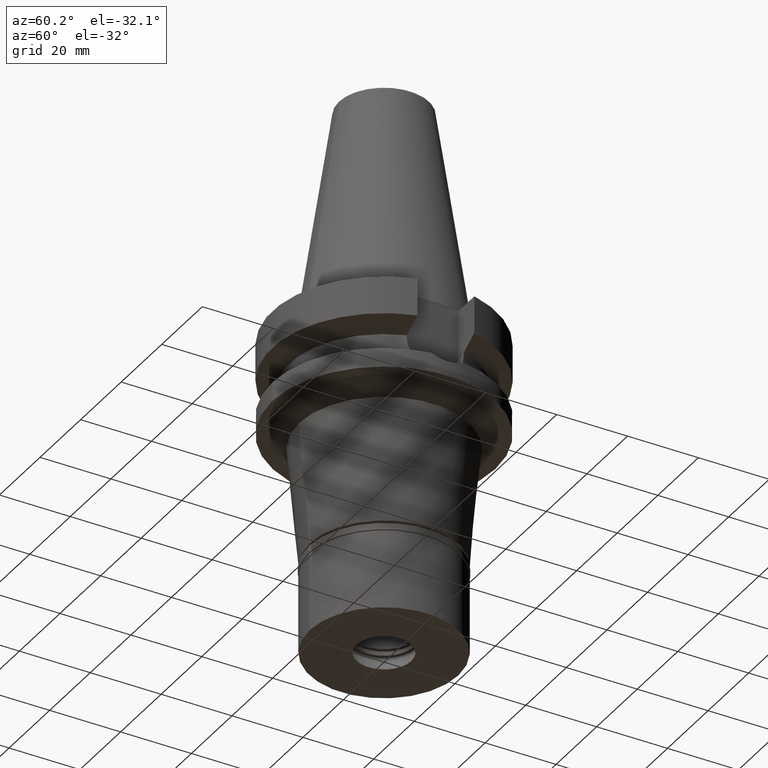
[diagram: clean part render]
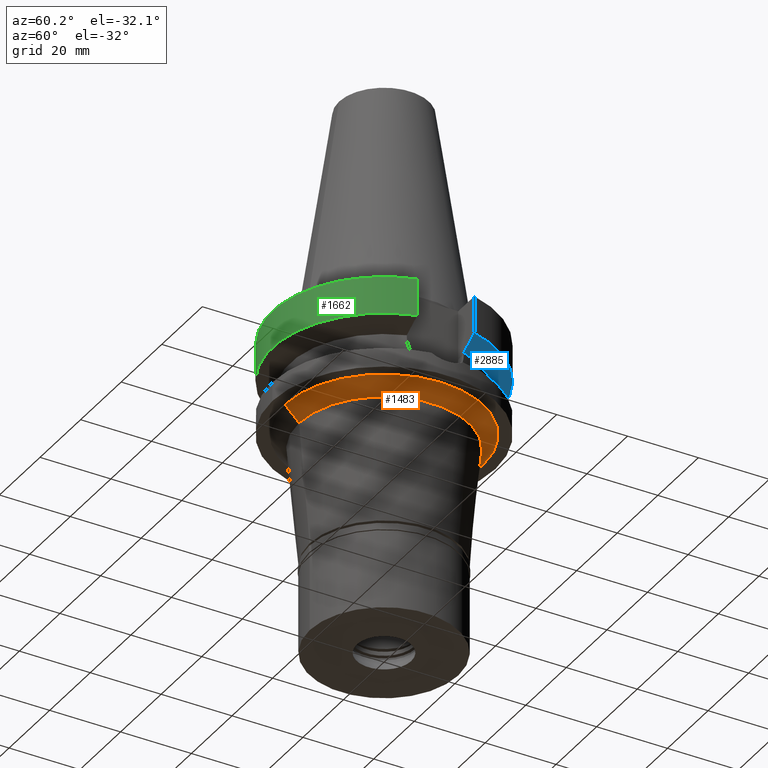
[diagram: same view with three faces highlighted in distinct colors, each labeled with its STEP entity id]
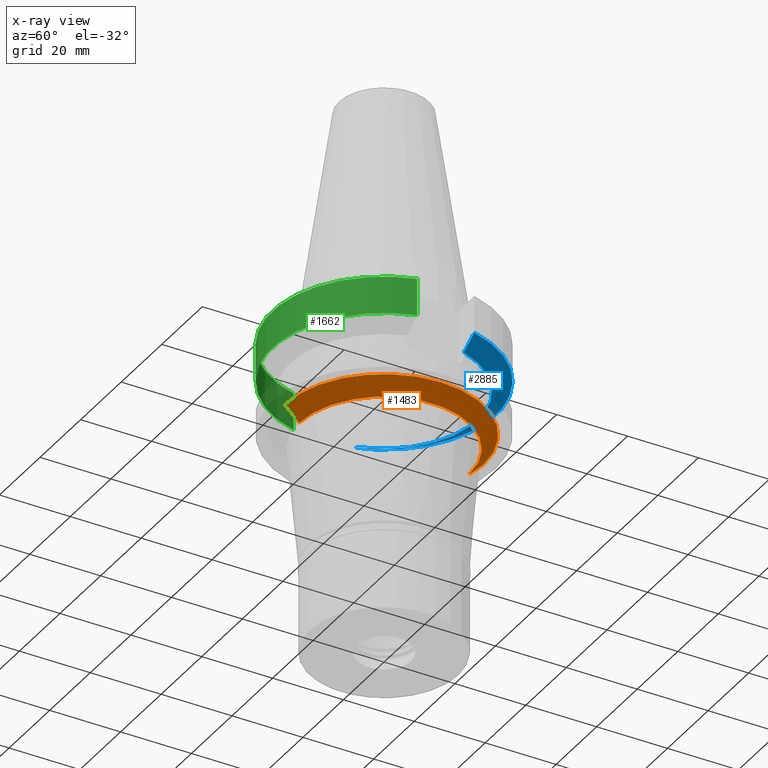
[diagram: x-ray of the same camera — body ghosted, the three highlighted faces saturated]
A machine part, auxiliary view with three faces highlighted in distinct colors.
The next image is the same camera in x-ray (body ghosted, the three faces saturated) — at least one of them is partly hidden behind the body in this view.
Their STEP definitions:

[orange] entity #1483 — the highlighted conical surface has half-angle 45 deg.
#14 = CIRCLE ( 'NONE', #430, 27.96586569352999874 ) ;
#31 = CONICAL_SURFACE ( 'NONE', #802, 25.96586569352999874, 0.7853981633972997312 ) ;
#82 = DIRECTION ( 'NONE',  ( 0.0000000000000000000, 0.7071067811867974839, -0.7071067811862974395 ) ) ;
#284 = CARTESIAN_POINT ( 'NONE',  ( 0.0000000000000000000, -27.96586569352999874, -27.00000000000000000 ) ) ;
#323 = ORIENTED_EDGE ( 'NONE', *, *, #1820, .T. ) ;
#324 = FACE_OUTER_BOUND ( 'NONE', #2244, .T. ) ;
#343 = DIRECTION ( 'NONE',  ( 0.0000000000000000000, 0.0000000000000000000, 1.000000000000000000 ) ) ;
#389 = CIRCLE ( 'NONE', #704, 23.96586569352000140 ) ;
#430 = AXIS2_PLACEMENT_3D ( 'NONE', #2709, #818, #2453 ) ;
#680 = CARTESIAN_POINT ( 'NONE',  ( 0.0000000000000000000, 27.96586569352999874, -27.00000000000000000 ) ) ;
#704 = AXIS2_PLACEMENT_3D ( 'NONE', #2747, #343, #2509 ) ;
#802 = AXIS2_PLACEMENT_3D ( 'NONE', #1537, #2565, #1602 ) ;
#818 = DIRECTION ( 'NONE',  ( 0.0000000000000000000, 0.0000000000000000000, -1.000000000000000000 ) ) ;
#895 = ORIENTED_EDGE ( 'NONE', *, *, #1582, .T. ) ;
#965 = DIRECTION ( 'NONE',  ( 0.0000000000000000000, -0.7071067811867974839, -0.7071067811862974395 ) ) ;
#1163 = VECTOR ( 'NONE', #82, 1000.000000000000114 ) ;
#1287 = CARTESIAN_POINT ( 'NONE',  ( 0.0000000000000000000, 23.96586569352999874, -31.00000000000000000 ) ) ;
#1468 = LINE ( 'NONE', #284, #1163 ) ;
#1483 = ADVANCED_FACE ( 'NONE', ( #324 ), #31, .T. ) ;
#1507 = ORIENTED_EDGE ( 'NONE', *, *, #2414, .T. ) ;
#1537 = CARTESIAN_POINT ( 'NONE',  ( 0.0000000000000000000, 0.0000000000000000000, -29.00000000000000000 ) ) ;
#1582 = EDGE_CURVE ( 'NONE', #1742, #2393, #389, .T. ) ;
#1602 = DIRECTION ( 'NONE',  ( 0.0000000000000000000, 1.000000000000000000, 0.0000000000000000000 ) ) ;
#1742 = VERTEX_POINT ( 'NONE', #3114 ) ;
#1820 = EDGE_CURVE ( 'NONE', #1930, #1742, #1468, .T. ) ;
#1883 = LINE ( 'NONE', #680, #2426 ) ;
#1930 = VERTEX_POINT ( 'NONE', #2475 ) ;
#2164 = ORIENTED_EDGE ( 'NONE', *, *, #2316, .F. ) ;
#2244 = EDGE_LOOP ( 'NONE', ( #1507, #323, #895, #2164 ) ) ;
#2316 = EDGE_CURVE ( 'NONE', #3151, #2393, #1883, .T. ) ;
#2393 = VERTEX_POINT ( 'NONE', #1287 ) ;
#2398 = CARTESIAN_POINT ( 'NONE',  ( 0.0000000000000000000, 27.96586569352999874, -27.00000000000000000 ) ) ;
#2414 = EDGE_CURVE ( 'NONE', #3151, #1930, #14, .T. ) ;
#2426 = VECTOR ( 'NONE', #965, 1000.000000000000114 ) ;
#2453 = DIRECTION ( 'NONE',  ( 0.0000000000000000000, 1.000000000000000000, 0.0000000000000000000 ) ) ;
#2475 = CARTESIAN_POINT ( 'NONE',  ( 0.0000000000000000000, -27.96586569352999874, -27.00000000000000000 ) ) ;
#2509 = DIRECTION ( 'NONE',  ( 0.0000000000000000000, -1.000000000000000000, 0.0000000000000000000 ) ) ;
#2565 = DIRECTION ( 'NONE',  ( 0.0000000000000000000, 0.0000000000000000000, 1.000000000000000000 ) ) ;
#2709 = CARTESIAN_POINT ( 'NONE',  ( 0.0000000000000000000, 0.0000000000000000000, -27.00000000000000000 ) ) ;
#2747 = CARTESIAN_POINT ( 'NONE',  ( 0.0000000000000000000, 0.0000000000000000000, -31.00000000000000000 ) ) ;
#3114 = CARTESIAN_POINT ( 'NONE',  ( 0.0000000000000000000, -23.96586569352999874, -31.00000000000000000 ) ) ;
#3151 = VERTEX_POINT ( 'NONE', #2398 ) ;

[blue] entity #2885 — the highlighted conical surface has half-angle 60 deg.
#92 = B_SPLINE_CURVE_WITH_KNOTS ( 'NONE', 3,
 ( #1605, #868, #1513, #138 ),
 .UNSPECIFIED., .F., .F.,
 ( 4, 4 ),
 ( 0.0000000000000000000, 1.000000000000000000 ),
 .UNSPECIFIED. ) ;
#117 = CIRCLE ( 'NONE', #2047, 31.50000000000000000 ) ;
#138 = CARTESIAN_POINT ( 'NONE',  ( -30.45402162689999770, 8.050004145840000902, -11.56546830870999898 ) ) ;
#247 = EDGE_CURVE ( 'NONE', #1014, #1647, #117, .T. ) ;
#259 = CARTESIAN_POINT ( 'NONE',  ( -25.24772216456000251, 8.050001583911001291, -14.45224489613999985 ) ) ;
#425 = CARTESIAN_POINT ( 'NONE',  ( -30.45402162689999770, 8.050004145840000902, -11.56546830870999898 ) ) ;
#498 = EDGE_CURVE ( 'NONE', #1345, #1647, #92, .T. ) ;
#504 = DIRECTION ( 'NONE',  ( -0.9527442516822307583, 0.3037735849057093818, 0.0000000000000000000 ) ) ;
#585 = AXIS2_PLACEMENT_3D ( 'NONE', #2920, #1051, #2707 ) ;
#728 = ORIENTED_EDGE ( 'NONE', *, *, #1817, .F. ) ;
#755 = FACE_OUTER_BOUND ( 'NONE', #1126, .T. ) ;
#830 = B_SPLINE_CURVE_WITH_KNOTS ( 'NONE', 3,
 ( #1782, #1033, #2005, #1311 ),
 .UNSPECIFIED., .F., .F.,
 ( 4, 4 ),
 ( 0.0000000000000000000, 1.000000000000000000 ),
 .UNSPECIFIED. ) ;
#868 = CARTESIAN_POINT ( 'NONE',  ( -26.83758141526010732, 8.050003171244510369, -13.57772739050068900 ) ) ;
#911 = VERTEX_POINT ( 'NONE', #2498 ) ;
#1014 = VERTEX_POINT ( 'NONE', #2097 ) ;
#1033 = CARTESIAN_POINT ( 'NONE',  ( 28.57292325961556401, 8.049998553931823508, -12.61549607296751141 ) ) ;
#1051 = DIRECTION ( 'NONE',  ( 0.0000000000000000000, 0.0000000000000000000, 1.000000000000000000 ) ) ;
#1076 = DIRECTION ( 'NONE',  ( 0.0000000000000000000, 0.0000000000000000000, 1.000000000000000000 ) ) ;
#1126 = EDGE_LOOP ( 'NONE', ( #1549, #1832, #728, #2587 ) ) ;
#1278 = DIRECTION ( 'NONE',  ( 0.0000000000000000000, 1.000000000000000000, 0.0000000000000000000 ) ) ;
#1311 = CARTESIAN_POINT ( 'NONE',  ( 25.24772413222000012, 8.049995412611998802, -14.45229205223999891 ) ) ;
#1345 = VERTEX_POINT ( 'NONE', #259 ) ;
#1411 = CIRCLE ( 'NONE', #2782, 26.50000000000000711 ) ;
#1513 = CARTESIAN_POINT ( 'NONE',  ( -28.57295865002469881, 8.050008286641141098, -12.61547483839417971 ) ) ;
#1547 = CONICAL_SURFACE ( 'NONE', #585, 29.00000000000000000, 1.047197551196400456 ) ;
#1549 = ORIENTED_EDGE ( 'NONE', *, *, #247, .F. ) ;
#1605 = CARTESIAN_POINT ( 'NONE',  ( -25.24772216456000251, 8.050001583911001291, -14.45224489613999985 ) ) ;
#1647 = VERTEX_POINT ( 'NONE', #425 ) ;
#1782 = CARTESIAN_POINT ( 'NONE',  ( 30.45402291402999850, 8.049999276495000800, -11.56551216911999980 ) ) ;
#1784 = CARTESIAN_POINT ( 'NONE',  ( 0.0000000000000000000, 1.065333950388000029E-14, -11.56550565266999975 ) ) ;
#1817 = EDGE_CURVE ( 'NONE', #1345, #911, #1411, .T. ) ;
#1832 = ORIENTED_EDGE ( 'NONE', *, *, #2424, .T. ) ;
#2005 = CARTESIAN_POINT ( 'NONE',  ( 26.83754612812102280, 8.049990815062949778, -13.57774889971515186 ) ) ;
#2047 = AXIS2_PLACEMENT_3D ( 'NONE', #1784, #1076, #1278 ) ;
#2097 = CARTESIAN_POINT ( 'NONE',  ( 30.45402291402999850, 8.049999276495000800, -11.56551216911999980 ) ) ;
#2424 = EDGE_CURVE ( 'NONE', #1014, #911, #830, .T. ) ;
#2498 = CARTESIAN_POINT ( 'NONE',  ( 25.24772413222000012, 8.049995412611998802, -14.45229205223999891 ) ) ;
#2587 = ORIENTED_EDGE ( 'NONE', *, *, #498, .T. ) ;
#2687 = DIRECTION ( 'NONE',  ( 0.0000000000000000000, 0.0000000000000000000, -1.000000000000000000 ) ) ;
#2707 = DIRECTION ( 'NONE',  ( 0.0000000000000000000, 1.000000000000000000, 0.0000000000000000000 ) ) ;
#2782 = AXIS2_PLACEMENT_3D ( 'NONE', #2910, #2687, #504 ) ;
#2885 = ADVANCED_FACE ( 'NONE', ( #755 ), #1547, .T. ) ;
#2910 = CARTESIAN_POINT ( 'NONE',  ( 0.0000000000000000000, 1.065333950388000029E-14, -14.45225699861000024 ) ) ;
#2920 = CARTESIAN_POINT ( 'NONE',  ( 0.0000000000000000000, 1.065333950388000029E-14, -13.00888132564000088 ) ) ;

[green] entity #1662 — the highlighted cylindrical surface (partial cylindrical patch) has radius 31.5 mm, axis along (0, 0, -1).
#27 = CIRCLE ( 'NONE', #3086, 31.50000000000000000 ) ;
#90 = DIRECTION ( 'NONE',  ( -1.037635672219017537E-07, -3.925482874443068289E-07, -0.9999999999999176215 ) ) ;
#91 = LINE ( 'NONE', #1336, #1308 ) ;
#118 = CARTESIAN_POINT ( 'NONE',  ( 30.45402272279000044, -8.050000000000000711, -1.000000000000000000 ) ) ;
#225 = ORIENTED_EDGE ( 'NONE', *, *, #2401, .T. ) ;
#295 = CARTESIAN_POINT ( 'NONE',  ( 0.0000000000000000000, 1.065333950388000029E-14, -11.56550565266999975 ) ) ;
#401 = VERTEX_POINT ( 'NONE', #2224 ) ;
#555 = DIRECTION ( 'NONE',  ( 0.0000000000000000000, -1.000000000000000000, 0.0000000000000000000 ) ) ;
#957 = ORIENTED_EDGE ( 'NONE', *, *, #1348, .T. ) ;
#976 = EDGE_CURVE ( 'NONE', #401, #3050, #91, .T. ) ;
#1100 = CARTESIAN_POINT ( 'NONE',  ( -30.45402272279000044, -8.050000000000000711, -1.000000000000000000 ) ) ;
#1147 = CYLINDRICAL_SURFACE ( 'NONE', #3142, 31.50000000000000000 ) ;
#1230 = DIRECTION ( 'NONE',  ( 0.0000000000000000000, -1.000000000000000000, 0.0000000000000000000 ) ) ;
#1243 = VECTOR ( 'NONE', #90, 1000.000000000000000 ) ;
#1274 = DIRECTION ( 'NONE',  ( 0.0000000000000000000, 0.0000000000000000000, 1.000000000000000000 ) ) ;
#1308 = VECTOR ( 'NONE', #2750, 1000.000000000000114 ) ;
#1336 = CARTESIAN_POINT ( 'NONE',  ( -30.45402291394999850, -8.049999276803999848, -11.56551216635000046 ) ) ;
#1348 = EDGE_CURVE ( 'NONE', #1877, #3050, #27, .T. ) ;
#1586 = LINE ( 'NONE', #118, #1243 ) ;
#1662 = ADVANCED_FACE ( 'NONE', ( #2632 ), #1147, .T. ) ;
#1749 = DIRECTION ( 'NONE',  ( 0.0000000000000000000, -1.000000000000000000, 0.0000000000000000000 ) ) ;
#1816 = CARTESIAN_POINT ( 'NONE',  ( 30.45402272279000044, -8.049999999999000622, -11.56550565266999975 ) ) ;
#1877 = VERTEX_POINT ( 'NONE', #3005 ) ;
#2110 = DIRECTION ( 'NONE',  ( 0.0000000000000000000, 0.0000000000000000000, -1.000000000000000000 ) ) ;
#2177 = CARTESIAN_POINT ( 'NONE',  ( 0.0000000000000000000, 2.116128436586999977E-14, -1.000000000000000000 ) ) ;
#2203 = EDGE_LOOP ( 'NONE', ( #2434, #225, #2444, #957 ) ) ;
#2224 = CARTESIAN_POINT ( 'NONE',  ( -30.45402291394999850, -8.049999276803999848, -11.56551216635000046 ) ) ;
#2347 = CARTESIAN_POINT ( 'NONE',  ( 0.0000000000000000000, 2.116128436586999977E-14, 72.79500000000000171 ) ) ;
#2401 = EDGE_CURVE ( 'NONE', #401, #2530, #2465, .T. ) ;
#2434 = ORIENTED_EDGE ( 'NONE', *, *, #976, .F. ) ;
#2444 = ORIENTED_EDGE ( 'NONE', *, *, #3019, .F. ) ;
#2465 = CIRCLE ( 'NONE', #2513, 31.50000000000000000 ) ;
#2496 = DIRECTION ( 'NONE',  ( 0.0000000000000000000, 0.0000000000000000000, -1.000000000000000000 ) ) ;
#2513 = AXIS2_PLACEMENT_3D ( 'NONE', #295, #1274, #1749 ) ;
#2530 = VERTEX_POINT ( 'NONE', #1816 ) ;
#2632 = FACE_OUTER_BOUND ( 'NONE', #2203, .T. ) ;
#2750 = DIRECTION ( 'NONE',  ( 1.809319419596990424E-08, -6.844875061972961709E-08, 0.9999999999999974465 ) ) ;
#3005 = CARTESIAN_POINT ( 'NONE',  ( 30.45402272279000044, -8.050000000000000711, -1.000000000000000000 ) ) ;
#3019 = EDGE_CURVE ( 'NONE', #1877, #2530, #1586, .T. ) ;
#3050 = VERTEX_POINT ( 'NONE', #1100 ) ;
#3086 = AXIS2_PLACEMENT_3D ( 'NONE', #2177, #2496, #555 ) ;
#3142 = AXIS2_PLACEMENT_3D ( 'NONE', #2347, #2110, #1230 ) ;